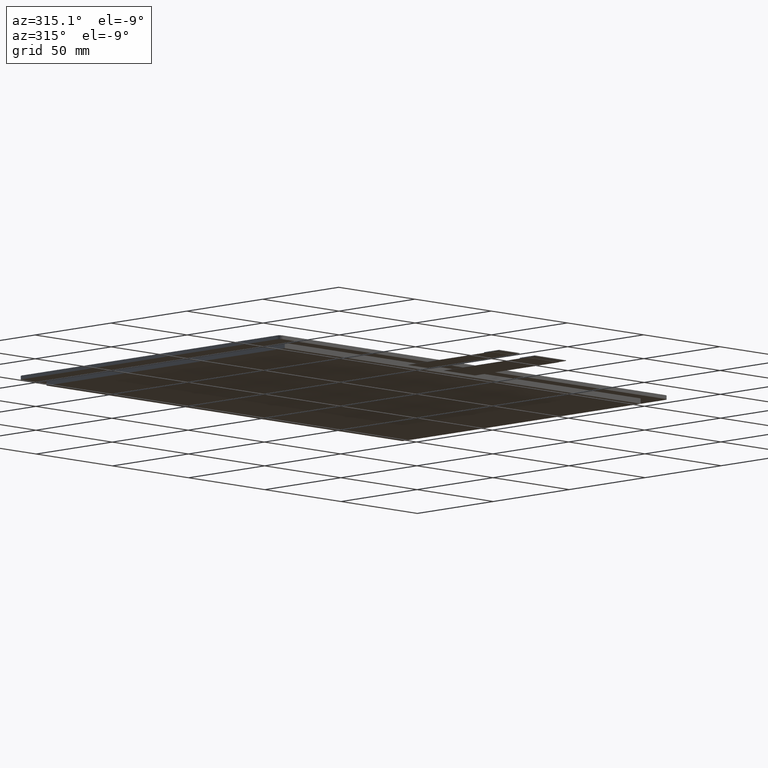
[diagram: clean part render]
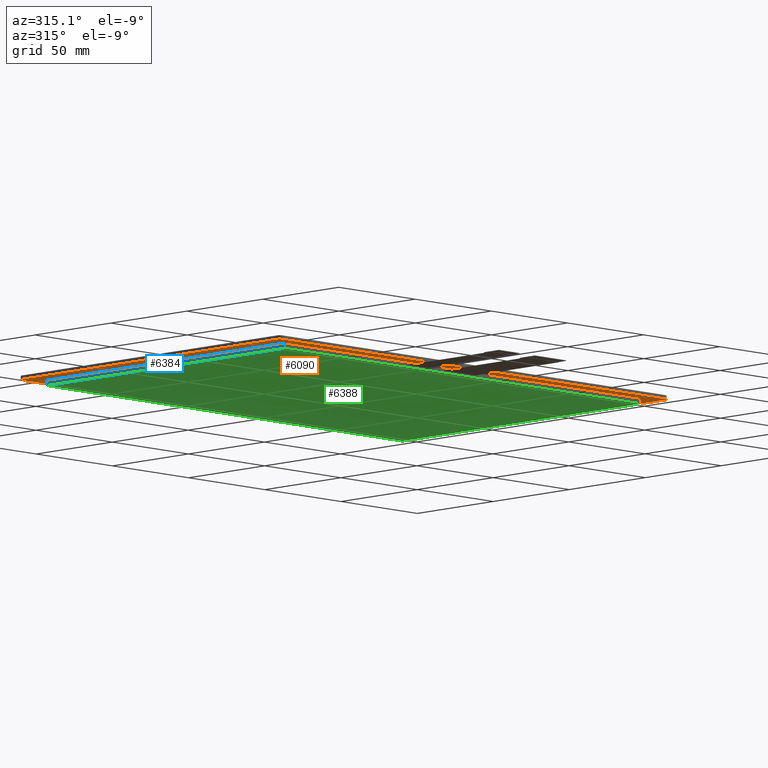
[diagram: same view with three faces highlighted in distinct colors, each labeled with its STEP entity id]
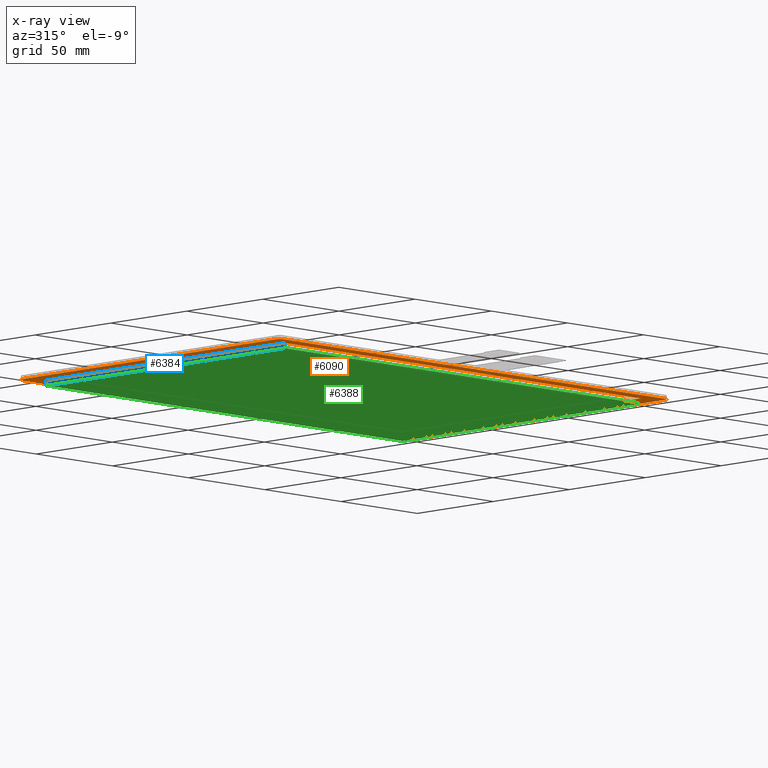
[diagram: x-ray of the same camera — body ghosted, the three highlighted faces saturated]
A machine part, auxiliary view with three faces highlighted in distinct colors.
The next image is the same camera in x-ray (body ghosted, the three faces saturated) — at least one of them is partly hidden behind the body in this view.
Their STEP definitions:

[orange] entity #6090 — the highlighted planar face has unit normal (0, 0, 1).
#40=FACE_BOUND('',#356,.T.);
#46=FACE_OUTER_BOUND('',#355,.T.);
#355=EDGE_LOOP('',(#3983,#3984,#3985,#3986,#3987,#3988,#3989,#3990));
#356=EDGE_LOOP('',(#3991,#3992,#3993,#3994));
#673=LINE('',#8313,#1561);
#675=LINE('',#8317,#1563);
#676=LINE('',#8321,#1564);
#677=LINE('',#8325,#1565);
#678=LINE('',#8329,#1566);
#679=LINE('',#8331,#1567);
#680=LINE('',#8333,#1568);
#681=LINE('',#8334,#1569);
#1561=VECTOR('',#6769,10.);
#1563=VECTOR('',#6773,10.);
#1564=VECTOR('',#6776,10.);
#1565=VECTOR('',#6779,10.);
#1566=VECTOR('',#6782,10.);
#1567=VECTOR('',#6783,10.);
#1568=VECTOR('',#6784,10.);
#1569=VECTOR('',#6785,10.);
#2443=CIRCLE('',#6423,2.);
#2444=CIRCLE('',#6426,2.);
#2445=CIRCLE('',#6427,2.);
#2446=CIRCLE('',#6428,2.);
#2467=VERTEX_POINT('',#8306);
#2468=VERTEX_POINT('',#8308);
#2469=VERTEX_POINT('',#8312);
#2470=VERTEX_POINT('',#8316);
#2471=VERTEX_POINT('',#8318);
#2472=VERTEX_POINT('',#8320);
#2473=VERTEX_POINT('',#8322);
#2474=VERTEX_POINT('',#8324);
#2475=VERTEX_POINT('',#8327);
#2476=VERTEX_POINT('',#8328);
#2477=VERTEX_POINT('',#8330);
#2478=VERTEX_POINT('',#8332);
#3072=EDGE_CURVE('',#2467,#2468,#2443,.T.);
#3074=EDGE_CURVE('',#2468,#2469,#673,.T.);
#3076=EDGE_CURVE('',#2470,#2467,#675,.T.);
#3077=EDGE_CURVE('',#2471,#2470,#2444,.T.);
#3078=EDGE_CURVE('',#2472,#2471,#676,.T.);
#3079=EDGE_CURVE('',#2473,#2472,#2445,.T.);
#3080=EDGE_CURVE('',#2474,#2473,#677,.T.);
#3081=EDGE_CURVE('',#2469,#2474,#2446,.T.);
#3082=EDGE_CURVE('',#2475,#2476,#678,.T.);
#3083=EDGE_CURVE('',#2476,#2477,#679,.T.);
#3084=EDGE_CURVE('',#2477,#2478,#680,.T.);
#3085=EDGE_CURVE('',#2478,#2475,#681,.T.);
#3983=ORIENTED_EDGE('',*,*,#3072,.F.);
#3984=ORIENTED_EDGE('',*,*,#3076,.F.);
#3985=ORIENTED_EDGE('',*,*,#3077,.F.);
#3986=ORIENTED_EDGE('',*,*,#3078,.F.);
#3987=ORIENTED_EDGE('',*,*,#3079,.F.);
#3988=ORIENTED_EDGE('',*,*,#3080,.F.);
#3989=ORIENTED_EDGE('',*,*,#3081,.F.);
#3990=ORIENTED_EDGE('',*,*,#3074,.F.);
#3991=ORIENTED_EDGE('',*,*,#3082,.T.);
#3992=ORIENTED_EDGE('',*,*,#3083,.T.);
#3993=ORIENTED_EDGE('',*,*,#3084,.T.);
#3994=ORIENTED_EDGE('',*,*,#3085,.T.);
#5773=PLANE('',#6425);
#6090=ADVANCED_FACE('',(#46,#40),#5773,.F.);
#6423=AXIS2_PLACEMENT_3D('',#8309,#6764,#6765);
#6425=AXIS2_PLACEMENT_3D('',#8315,#6771,#6772);
#6426=AXIS2_PLACEMENT_3D('',#8319,#6774,#6775);
#6427=AXIS2_PLACEMENT_3D('',#8323,#6777,#6778);
#6428=AXIS2_PLACEMENT_3D('',#8326,#6780,#6781);
#6764=DIRECTION('center_axis',(0.,0.,1.));
#6765=DIRECTION('ref_axis',(0.707106781186548,0.707106781186548,0.));
#6769=DIRECTION('',(-1.,0.,0.));
#6771=DIRECTION('center_axis',(0.,0.,1.));
#6772=DIRECTION('ref_axis',(1.,0.,0.));
#6773=DIRECTION('',(-1.03457008701238E-16,1.,0.));
#6774=DIRECTION('center_axis',(0.,0.,1.));
#6775=DIRECTION('ref_axis',(0.707106781186554,-0.707106781186541,0.));
#6776=DIRECTION('',(1.,2.089831575765E-16,0.));
#6777=DIRECTION('center_axis',(0.,0.,1.));
#6778=DIRECTION('ref_axis',(-0.707106781186548,-0.707106781186548,0.));
#6779=DIRECTION('',(2.06914017402475E-16,-1.,0.));
#6780=DIRECTION('center_axis',(0.,0.,1.));
#6781=DIRECTION('ref_axis',(-0.707106781186548,0.707106781186548,0.));
#6782=DIRECTION('',(2.26576127474522E-16,-1.,0.));
#6783=DIRECTION('',(1.,2.28225718124229E-16,0.));
#6784=DIRECTION('',(-2.26576127474522E-16,1.,0.));
#6785=DIRECTION('',(-1.,0.,0.));
#8306=CARTESIAN_POINT('',(127.52,81.5,0.));
#8308=CARTESIAN_POINT('',(125.52,83.5,0.));
#8309=CARTESIAN_POINT('Origin',(125.52,81.5,0.));
#8312=CARTESIAN_POINT('',(-125.48,83.5,0.));
#8313=CARTESIAN_POINT('',(127.52,83.5,0.));
#8315=CARTESIAN_POINT('Origin',(0.0199999999999712,-2.34999999999999,0.));
#8316=CARTESIAN_POINT('',(127.52,-86.2,0.));
#8317=CARTESIAN_POINT('',(127.52,-88.1999999999999,0.));
#8318=CARTESIAN_POINT('',(125.52,-88.1999999999999,0.));
#8319=CARTESIAN_POINT('Origin',(125.52,-86.2,0.));
#8320=CARTESIAN_POINT('',(-125.48,-88.2,0.));
#8321=CARTESIAN_POINT('',(-127.48,-88.2,0.));
#8322=CARTESIAN_POINT('',(-127.48,-86.2,0.));
#8323=CARTESIAN_POINT('Origin',(-125.48,-86.2,0.));
#8324=CARTESIAN_POINT('',(-127.48,81.5,0.));
#8325=CARTESIAN_POINT('',(-127.48,83.5,0.));
#8326=CARTESIAN_POINT('Origin',(-125.48,81.5,0.));
#8327=CARTESIAN_POINT('',(-117.28,75.6000000000001,0.));
#8328=CARTESIAN_POINT('',(-117.28,-81.2,0.));
#8329=CARTESIAN_POINT('',(-117.28,75.6000000000001,0.));
#8330=CARTESIAN_POINT('',(116.22,-81.2,0.));
#8331=CARTESIAN_POINT('',(-117.28,-81.2,0.));
#8332=CARTESIAN_POINT('',(116.22,75.6000000000001,0.));
#8333=CARTESIAN_POINT('',(116.22,-81.2,0.));
#8334=CARTESIAN_POINT('',(116.22,75.6000000000001,0.));

[blue] entity #6384 — the highlighted planar face has unit normal (-1, -0, 0).
#340=FACE_OUTER_BOUND('',#650,.T.);
#650=EDGE_LOOP('',(#5719,#5720,#5721,#5722));
#678=LINE('',#8329,#1566);
#1531=LINE('',#10055,#2419);
#1532=LINE('',#10057,#2420);
#1533=LINE('',#10058,#2421);
#1566=VECTOR('',#6782,10.);
#2419=VECTOR('',#8239,10.);
#2420=VECTOR('',#8240,10.);
#2421=VECTOR('',#8241,10.);
#2475=VERTEX_POINT('',#8327);
#2476=VERTEX_POINT('',#8328);
#3047=VERTEX_POINT('',#10054);
#3048=VERTEX_POINT('',#10056);
#3082=EDGE_CURVE('',#2475,#2476,#678,.T.);
#3943=EDGE_CURVE('',#2475,#3047,#1531,.T.);
#3944=EDGE_CURVE('',#3048,#3047,#1532,.T.);
#3945=EDGE_CURVE('',#2476,#3048,#1533,.T.);
#5719=ORIENTED_EDGE('',*,*,#3082,.F.);
#5720=ORIENTED_EDGE('',*,*,#3943,.T.);
#5721=ORIENTED_EDGE('',*,*,#3944,.F.);
#5722=ORIENTED_EDGE('',*,*,#3945,.F.);
#6060=PLANE('',#6730);
#6384=ADVANCED_FACE('',(#340),#6060,.T.);
#6730=AXIS2_PLACEMENT_3D('',#10053,#8237,#8238);
#6782=DIRECTION('',(2.26576127474522E-16,-1.,0.));
#8237=DIRECTION('center_axis',(-1.,-2.26576127474522E-16,0.));
#8238=DIRECTION('ref_axis',(-2.26576127474522E-16,1.,0.));
#8239=DIRECTION('',(0.,0.,-1.));
#8240=DIRECTION('',(-2.26576127474522E-16,1.,0.));
#8241=DIRECTION('',(0.,0.,-1.));
#8327=CARTESIAN_POINT('',(-117.28,75.6000000000001,0.));
#8328=CARTESIAN_POINT('',(-117.28,-81.2,0.));
#8329=CARTESIAN_POINT('',(-117.28,75.6000000000001,0.));
#10053=CARTESIAN_POINT('Origin',(-117.28,-81.2,0.));
#10054=CARTESIAN_POINT('',(-117.28,75.6000000000001,-2.5));
#10055=CARTESIAN_POINT('',(-117.28,75.6000000000001,0.));
#10056=CARTESIAN_POINT('',(-117.28,-81.2,-2.5));
#10057=CARTESIAN_POINT('',(-117.28,75.6000000000001,-2.5));
#10058=CARTESIAN_POINT('',(-117.28,-81.2,0.));

[green] entity #6388 — the highlighted planar face has unit normal (0, 0, -1).
#344=FACE_OUTER_BOUND('',#656,.T.);
#656=EDGE_LOOP('',(#5743,#5744,#5745,#5746));
#1532=LINE('',#10057,#2420);
#1534=LINE('',#10061,#2422);
#1536=LINE('',#10065,#2424);
#1538=LINE('',#10068,#2426);
#2420=VECTOR('',#8240,10.);
#2422=VECTOR('',#8244,10.);
#2424=VECTOR('',#8248,10.);
#2426=VECTOR('',#8252,10.);
#3047=VERTEX_POINT('',#10054);
#3048=VERTEX_POINT('',#10056);
#3049=VERTEX_POINT('',#10060);
#3050=VERTEX_POINT('',#10064);
#3944=EDGE_CURVE('',#3048,#3047,#1532,.T.);
#3946=EDGE_CURVE('',#3049,#3048,#1534,.T.);
#3948=EDGE_CURVE('',#3050,#3049,#1536,.T.);
#3950=EDGE_CURVE('',#3047,#3050,#1538,.T.);
#5743=ORIENTED_EDGE('',*,*,#3950,.T.);
#5744=ORIENTED_EDGE('',*,*,#3948,.T.);
#5745=ORIENTED_EDGE('',*,*,#3946,.T.);
#5746=ORIENTED_EDGE('',*,*,#3944,.T.);
#6064=PLANE('',#6734);
#6388=ADVANCED_FACE('',(#344),#6064,.T.);
#6734=AXIS2_PLACEMENT_3D('',#10069,#8253,#8254);
#8240=DIRECTION('',(-2.26576127474522E-16,1.,0.));
#8244=DIRECTION('',(-1.,-2.28225718124229E-16,0.));
#8248=DIRECTION('',(2.26576127474522E-16,-1.,0.));
#8252=DIRECTION('',(1.,0.,0.));
#8253=DIRECTION('center_axis',(0.,0.,-1.));
#8254=DIRECTION('ref_axis',(-1.,0.,0.));
#10054=CARTESIAN_POINT('',(-117.28,75.6000000000001,-2.5));
#10056=CARTESIAN_POINT('',(-117.28,-81.2,-2.5));
#10057=CARTESIAN_POINT('',(-117.28,75.6000000000001,-2.5));
#10060=CARTESIAN_POINT('',(116.22,-81.2,-2.5));
#10061=CARTESIAN_POINT('',(-117.28,-81.2,-2.5));
#10064=CARTESIAN_POINT('',(116.22,75.6000000000001,-2.5));
#10065=CARTESIAN_POINT('',(116.22,-81.2,-2.5));
#10068=CARTESIAN_POINT('',(116.22,75.6000000000001,-2.5));
#10069=CARTESIAN_POINT('Origin',(-0.530000000000026,-2.79999999999998,-2.5));